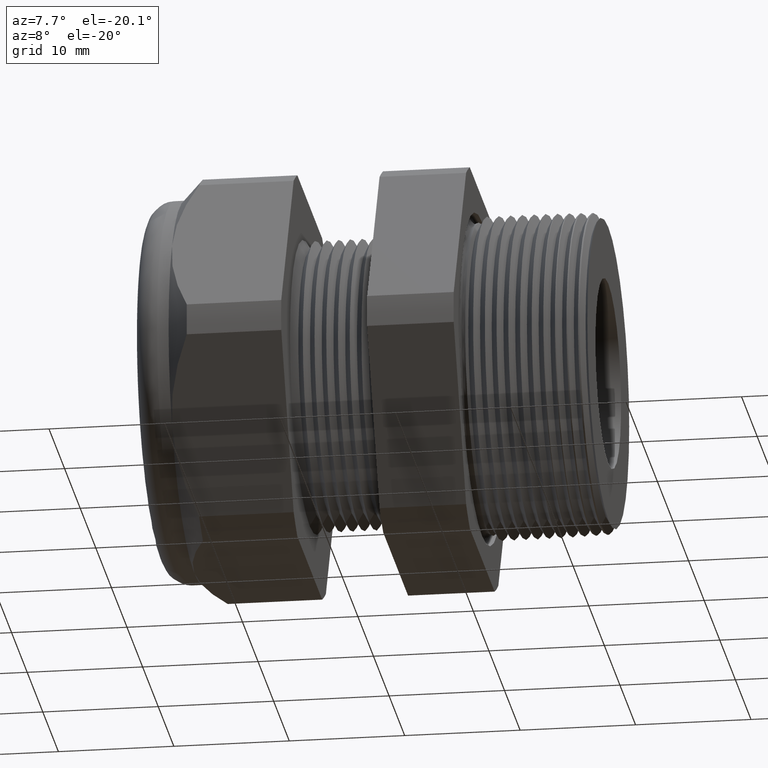
[diagram: clean part render]
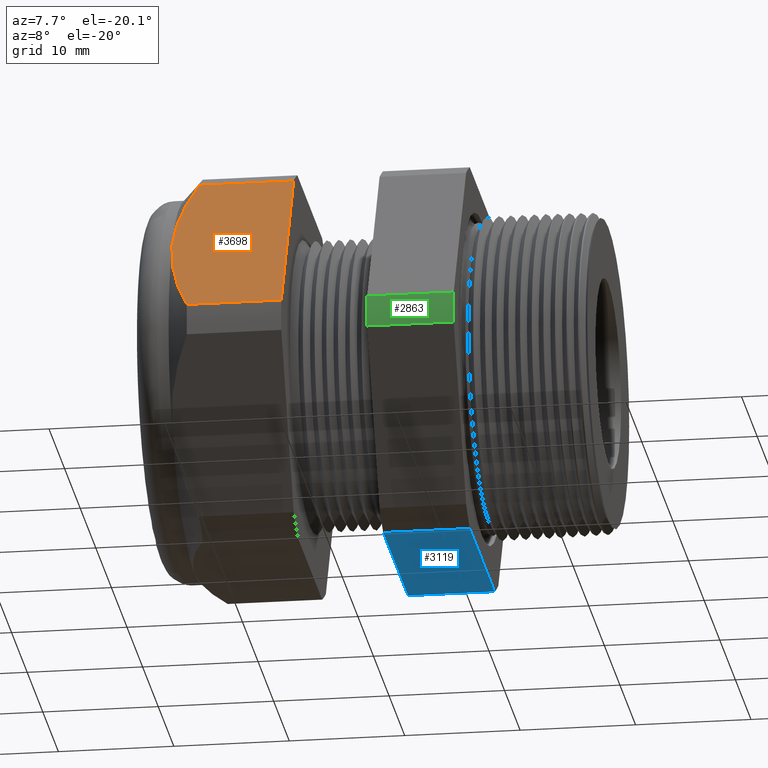
[diagram: same view with three faces highlighted in distinct colors, each labeled with its STEP entity id]
A machine part, auxiliary view with three faces highlighted in distinct colors.
Their STEP definitions:

[orange] entity #3698 — the highlighted planar face has unit normal (0, -0.866, 0.5).
#72 = VERTEX_POINT ( 'NONE', #435 ) ;
#435 = CARTESIAN_POINT ( 'NONE',  ( -1.220389763779527600, -0.4063420493440884600, 0.5961949252843791200 ) ) ;
#2293 = DIRECTION ( 'NONE',  ( -1.000000000000000000, 0.0000000000000000000, 0.0000000000000000000 ) ) ;
#2294 = VECTOR ( 'NONE', #2293, 39.37007874015748100 ) ;
#2295 = CARTESIAN_POINT ( 'NONE',  ( 0.1200000000000000900, -0.4063420493440885700, 0.5961949252843791200 ) ) ;
#2296 = LINE ( 'NONE', #2295, #2294 ) ;
#2303 = CARTESIAN_POINT ( 'NONE',  ( -0.8981889763779525900, -0.4063420493440885700, 0.5961949252843791200 ) ) ;
#2304 = DIRECTION ( 'NONE',  ( 0.0000000000000000000, -0.4999999999999997200, -0.8660254037844388200 ) ) ;
#2305 = DIRECTION ( 'NONE',  ( 0.0000000000000000000, -0.8660254037844388200, 0.4999999999999997200 ) ) ;
#2306 = CARTESIAN_POINT ( 'NONE',  ( 0.1200000000000000900, -0.7194909755756819800, 0.05380507471562046700 ) ) ;
#2307 = AXIS2_PLACEMENT_3D ( 'NONE', #2306, #2305, #2304 ) ;
#2308 = PLANE ( 'NONE',  #2307 ) ;
#2309 = FACE_OUTER_BOUND ( 'NONE', #3700, .T. ) ;
#2322 = CARTESIAN_POINT ( 'NONE',  ( -1.278613598462209800, -0.4956954080403314600, 0.4414303681955598600 ) ) ;
#2323 = CARTESIAN_POINT ( 'NONE',  ( -1.259883036713412400, -0.4566257321431000900, 0.5091010318848138100 ) ) ;
#2324 = CARTESIAN_POINT ( 'NONE',  ( -1.242011327000794900, -0.4312502584378781800, 0.5530526416083856300 ) ) ;
#2325 = CARTESIAN_POINT ( 'NONE',  ( -1.220389763779527600, -0.4063420493440884600, 0.5961949252843791200 ) ) ;
#2326 = B_SPLINE_CURVE_WITH_KNOTS ( 'NONE', 3,
 ( #2325, #2324, #2323, #2322, #2377, #2376, #2375, #2374, #2373, #2372 ),
 .UNSPECIFIED., .F., .F.,
 ( 4, 2, 2, 2, 4 ),
 ( 2.483249165352349700E-007, 0.004082012451910163300, 0.006122894515406975200, 0.007143335547155378100, 0.008163776578903781900 ),
 .UNSPECIFIED. ) ;
#2327 = DIRECTION ( 'NONE',  ( -1.000000000000000000, 0.0000000000000000000, 0.0000000000000000000 ) ) ;
#2328 = VECTOR ( 'NONE', #2327, 39.37007874015748100 ) ;
#2329 = CARTESIAN_POINT ( 'NONE',  ( 0.1200000000000000900, -0.7194909755756820900, 0.05380507471562026600 ) ) ;
#2330 = LINE ( 'NONE', #2329, #2328 ) ;
#2331 = CARTESIAN_POINT ( 'NONE',  ( -1.220389763779527300, -0.7194909755756820900, 0.05380507471562026600 ) ) ;
#2344 = CARTESIAN_POINT ( 'NONE',  ( -0.8981889763779525900, -0.7194909755756820900, 0.05380507471562026600 ) ) ;
#2345 = DIRECTION ( 'NONE',  ( 0.0000000000000000000, -0.4999999999999997200, -0.8660254037844388200 ) ) ;
#2346 = VECTOR ( 'NONE', #2345, 39.37007874015748900 ) ;
#2347 = CARTESIAN_POINT ( 'NONE',  ( -0.8981889763779525900, -0.4380415124598853200, 0.5412898445951632700 ) ) ;
#2348 = LINE ( 'NONE', #2347, #2346 ) ;
#2362 = CARTESIAN_POINT ( 'NONE',  ( -1.291889763779527500, -0.5629165124598853900, 0.3249999999999999600 ) ) ;
#2365 = CARTESIAN_POINT ( 'NONE',  ( -1.220389763779527300, -0.7194909755756820900, 0.05380507471562026600 ) ) ;
#2366 = CARTESIAN_POINT ( 'NONE',  ( -1.242038095775945200, -0.6945519286446000300, 0.09700077109259909500 ) ) ;
#2367 = CARTESIAN_POINT ( 'NONE',  ( -1.260161853850736600, -0.6687756690813084800, 0.1416465622853034500 ) ) ;
#2368 = CARTESIAN_POINT ( 'NONE',  ( -1.285050007405226000, -0.6165592345672921100, 0.2320880798536729700 ) ) ;
#2369 = CARTESIAN_POINT ( 'NONE',  ( -1.291889763779527500, -0.5900081318517966800, 0.2780759387538905800 ) ) ;
#2370 = CARTESIAN_POINT ( 'NONE',  ( -1.291889763779527500, -0.5629165124598853900, 0.3249999999999999600 ) ) ;
#2371 = B_SPLINE_CURVE_WITH_KNOTS ( 'NONE', 3,
 ( #2370, #2369, #2368, #2367, #2366, #2365 ),
 .UNSPECIFIED., .F., .F.,
 ( 4, 2, 4 ),
 ( 0.008163776578903781900, 0.01224274182034619900, 0.01632170706178861700 ),
 .UNSPECIFIED. ) ;
#2372 = CARTESIAN_POINT ( 'NONE',  ( -1.291889763779527500, -0.5629165124598853900, 0.3249999999999999600 ) ) ;
#2373 = CARTESIAN_POINT ( 'NONE',  ( -1.291889763779527700, -0.5561389602113053800, 0.3367390648454929900 ) ) ;
#2374 = CARTESIAN_POINT ( 'NONE',  ( -1.291460853679630600, -0.5492994181763346500, 0.3485854991505651400 ) ) ;
#2375 = CARTESIAN_POINT ( 'NONE',  ( -1.289757307482531300, -0.5357104722797962900, 0.3721222438646743500 ) ) ;
#2376 = CARTESIAN_POINT ( 'NONE',  ( -1.288488242340941200, -0.5289679975772971800, 0.3838005526181507700 ) ) ;
#2377 = CARTESIAN_POINT ( 'NONE',  ( -1.283504729739888100, -0.5088871528993771400, 0.4185815958592074000 ) ) ;
#3698 = ADVANCED_FACE ( 'NONE', ( #2309 ), #2308, .T. ) ;
#3699 = VERTEX_POINT ( 'NONE', #2303 ) ;
#3700 = EDGE_LOOP ( 'NONE', ( #3723, #3724, #3720, #3717, #3711 ) ) ;
#3706 = EDGE_CURVE ( 'NONE', #3699, #72, #2296, .T. ) ;
#3710 = EDGE_CURVE ( 'NONE', #3699, #3713, #2348, .T. ) ;
#3711 = ORIENTED_EDGE ( 'NONE', *, *, #3710, .F. ) ;
#3713 = VERTEX_POINT ( 'NONE', #2344 ) ;
#3717 = ORIENTED_EDGE ( 'NONE', *, *, #3719, .F. ) ;
#3718 = VERTEX_POINT ( 'NONE', #2331 ) ;
#3719 = EDGE_CURVE ( 'NONE', #3713, #3718, #2330, .T. ) ;
#3720 = ORIENTED_EDGE ( 'NONE', *, *, #3722, .T. ) ;
#3721 = EDGE_CURVE ( 'NONE', #72, #3726, #2326, .T. ) ;
#3722 = EDGE_CURVE ( 'NONE', #3726, #3718, #2371, .T. ) ;
#3723 = ORIENTED_EDGE ( 'NONE', *, *, #3706, .T. ) ;
#3724 = ORIENTED_EDGE ( 'NONE', *, *, #3721, .T. ) ;
#3726 = VERTEX_POINT ( 'NONE', #2362 ) ;

[blue] entity #3119 — the highlighted planar face has unit normal (0, 0, -1).
#50 = LINE ( 'NONE', #51, #3178 ) ;
#51 = CARTESIAN_POINT ( 'NONE',  ( -0.6052755905511809600, 1.299999999999999800, -0.6500000000000001300 ) ) ;
#202 = VERTEX_POINT ( 'NONE', #645 ) ;
#205 = VERTEX_POINT ( 'NONE', #639 ) ;
#207 = EDGE_CURVE ( 'NONE', #205, #202, #638, .T. ) ;
#638 = LINE ( 'NONE', #699, #698 ) ;
#639 = CARTESIAN_POINT ( 'NONE',  ( -0.3100000000000000000, -0.3131489262315934100, -0.6500000000000001300 ) ) ;
#645 = CARTESIAN_POINT ( 'NONE',  ( -0.3100000000000000000, 0.3131489262315934100, -0.6500000000000001300 ) ) ;
#697 = DIRECTION ( 'NONE',  ( 0.0000000000000000000, 1.000000000000000000, 0.0000000000000000000 ) ) ;
#698 = VECTOR ( 'NONE', #697, 39.37007874015748100 ) ;
#699 = CARTESIAN_POINT ( 'NONE',  ( -0.3100000000000000000, 1.300000000000000000, -0.6500000000000001300 ) ) ;
#1248 = DIRECTION ( 'NONE',  ( -1.000000000000000000, 0.0000000000000000000, 0.0000000000000000000 ) ) ;
#1249 = VECTOR ( 'NONE', #1248, 39.37007874015748100 ) ;
#1250 = CARTESIAN_POINT ( 'NONE',  ( 0.1200000000000000900, 0.3131489262315934100, -0.6500000000000001300 ) ) ;
#1251 = LINE ( 'NONE', #1250, #1249 ) ;
#1252 = CARTESIAN_POINT ( 'NONE',  ( -0.6052755905511810800, 0.3131489262315934100, -0.6500000000000001300 ) ) ;
#1276 = DIRECTION ( 'NONE',  ( -1.000000000000000000, 0.0000000000000000000, 0.0000000000000000000 ) ) ;
#1277 = VECTOR ( 'NONE', #1276, 39.37007874015748100 ) ;
#1278 = CARTESIAN_POINT ( 'NONE',  ( 0.1200000000000000900, -0.3131489262315934100, -0.6500000000000001300 ) ) ;
#1279 = LINE ( 'NONE', #1278, #1277 ) ;
#1280 = CARTESIAN_POINT ( 'NONE',  ( -0.6052755905511810800, -0.3131489262315934100, -0.6500000000000001300 ) ) ;
#1327 = DIRECTION ( 'NONE',  ( -1.000000000000000000, 0.0000000000000000000, 0.0000000000000000000 ) ) ;
#1328 = DIRECTION ( 'NONE',  ( 0.0000000000000000000, 0.0000000000000000000, -1.000000000000000000 ) ) ;
#1329 = CARTESIAN_POINT ( 'NONE',  ( 0.1200000000000000900, 0.3131489262315934100, -0.6500000000000001300 ) ) ;
#1330 = AXIS2_PLACEMENT_3D ( 'NONE', #1329, #1328, #1327 ) ;
#1331 = PLANE ( 'NONE',  #1330 ) ;
#1332 = FACE_OUTER_BOUND ( 'NONE', #3118, .T. ) ;
#3090 = VERTEX_POINT ( 'NONE', #1252 ) ;
#3091 = EDGE_CURVE ( 'NONE', #202, #3090, #1251, .T. ) ;
#3111 = ORIENTED_EDGE ( 'NONE', *, *, #3115, .F. ) ;
#3112 = VERTEX_POINT ( 'NONE', #1280 ) ;
#3113 = EDGE_CURVE ( 'NONE', #205, #3112, #1279, .T. ) ;
#3114 = ORIENTED_EDGE ( 'NONE', *, *, #3113, .T. ) ;
#3115 = EDGE_CURVE ( 'NONE', #3090, #3112, #50, .T. ) ;
#3116 = ORIENTED_EDGE ( 'NONE', *, *, #207, .F. ) ;
#3117 = ORIENTED_EDGE ( 'NONE', *, *, #3091, .F. ) ;
#3118 = EDGE_LOOP ( 'NONE', ( #3117, #3116, #3114, #3111 ) ) ;
#3119 = ADVANCED_FACE ( 'NONE', ( #1332 ), #1331, .T. ) ;
#3177 = DIRECTION ( 'NONE',  ( 0.0000000000000000000, -1.000000000000000000, 0.0000000000000000000 ) ) ;
#3178 = VECTOR ( 'NONE', #3177, 39.37007874015748100 ) ;

[green] entity #2863 — the highlighted cylindrical surface (partial cylindrical patch) has radius 18.3261 mm, axis along (-1, 0, 0).
#214 = VERTEX_POINT ( 'NONE', #682 ) ;
#215 = EDGE_CURVE ( 'NONE', #214, #217, #681, .T. ) ;
#217 = VERTEX_POINT ( 'NONE', #676 ) ;
#676 = CARTESIAN_POINT ( 'NONE',  ( -0.3100000000000000000, -0.7194909755756819800, -0.05380507471562111900 ) ) ;
#677 = DIRECTION ( 'NONE',  ( 0.0000000000000000000, 0.0000000000000000000, -1.000000000000000000 ) ) ;
#678 = DIRECTION ( 'NONE',  ( 1.000000000000000000, 0.0000000000000000000, 0.0000000000000000000 ) ) ;
#679 = CARTESIAN_POINT ( 'NONE',  ( -0.3100000000000000000, 0.0000000000000000000, 0.0000000000000000000 ) ) ;
#680 = AXIS2_PLACEMENT_3D ( 'NONE', #679, #678, #677 ) ;
#681 = CIRCLE ( 'NONE', #680, 0.7215000000000002500 ) ;
#682 = CARTESIAN_POINT ( 'NONE',  ( -0.3100000000000000000, -0.7194909755756820900, 0.05380507471562026600 ) ) ;
#829 = DIRECTION ( 'NONE',  ( 0.0000000000000000000, 0.0000000000000000000, 1.000000000000000000 ) ) ;
#830 = DIRECTION ( 'NONE',  ( -1.000000000000000000, 0.0000000000000000000, 0.0000000000000000000 ) ) ;
#831 = CARTESIAN_POINT ( 'NONE',  ( -0.6052755905511810800, 0.0000000000000000000, 0.0000000000000000000 ) ) ;
#832 = AXIS2_PLACEMENT_3D ( 'NONE', #831, #830, #829 ) ;
#833 = CIRCLE ( 'NONE', #832, 0.7215000000000002500 ) ;
#862 = DIRECTION ( 'NONE',  ( -1.000000000000000000, 0.0000000000000000000, 0.0000000000000000000 ) ) ;
#863 = VECTOR ( 'NONE', #862, 39.37007874015748100 ) ;
#864 = CARTESIAN_POINT ( 'NONE',  ( 0.1200000000000000900, -0.7194909755756820900, 0.05380507471562026600 ) ) ;
#865 = LINE ( 'NONE', #864, #863 ) ;
#866 = CARTESIAN_POINT ( 'NONE',  ( -0.6052755905511810800, -0.7194909755756820900, 0.05380507471562026600 ) ) ;
#875 = DIRECTION ( 'NONE',  ( 0.0000000000000000000, 0.0000000000000000000, 1.000000000000000000 ) ) ;
#876 = DIRECTION ( 'NONE',  ( -1.000000000000000000, 0.0000000000000000000, 0.0000000000000000000 ) ) ;
#877 = CARTESIAN_POINT ( 'NONE',  ( 0.1200000000000000900, 0.0000000000000000000, 0.0000000000000000000 ) ) ;
#878 = AXIS2_PLACEMENT_3D ( 'NONE', #877, #876, #875 ) ;
#879 = CYLINDRICAL_SURFACE ( 'NONE', #878, 0.7215000000000002500 ) ;
#881 = FACE_OUTER_BOUND ( 'NONE', #2862, .T. ) ;
#1317 = CARTESIAN_POINT ( 'NONE',  ( -0.6052755905511810800, -0.7194909755756819800, -0.05380507471562111900 ) ) ;
#1318 = DIRECTION ( 'NONE',  ( -1.000000000000000000, 0.0000000000000000000, 0.0000000000000000000 ) ) ;
#1319 = VECTOR ( 'NONE', #1318, 39.37007874015748100 ) ;
#1320 = CARTESIAN_POINT ( 'NONE',  ( 0.1200000000000000900, -0.7194909755756819800, -0.05380507471562111900 ) ) ;
#1321 = LINE ( 'NONE', #1320, #1319 ) ;
#2854 = EDGE_CURVE ( 'NONE', #3123, #2870, #833, .T. ) ;
#2861 = ORIENTED_EDGE ( 'NONE', *, *, #3122, .F. ) ;
#2862 = EDGE_LOOP ( 'NONE', ( #2861, #2876, #2874, #2864 ) ) ;
#2863 = ADVANCED_FACE ( 'NONE', ( #881 ), #879, .T. ) ;
#2864 = ORIENTED_EDGE ( 'NONE', *, *, #2854, .F. ) ;
#2870 = VERTEX_POINT ( 'NONE', #866 ) ;
#2872 = EDGE_CURVE ( 'NONE', #214, #2870, #865, .T. ) ;
#2874 = ORIENTED_EDGE ( 'NONE', *, *, #2872, .T. ) ;
#2876 = ORIENTED_EDGE ( 'NONE', *, *, #215, .F. ) ;
#3122 = EDGE_CURVE ( 'NONE', #217, #3123, #1321, .T. ) ;
#3123 = VERTEX_POINT ( 'NONE', #1317 ) ;